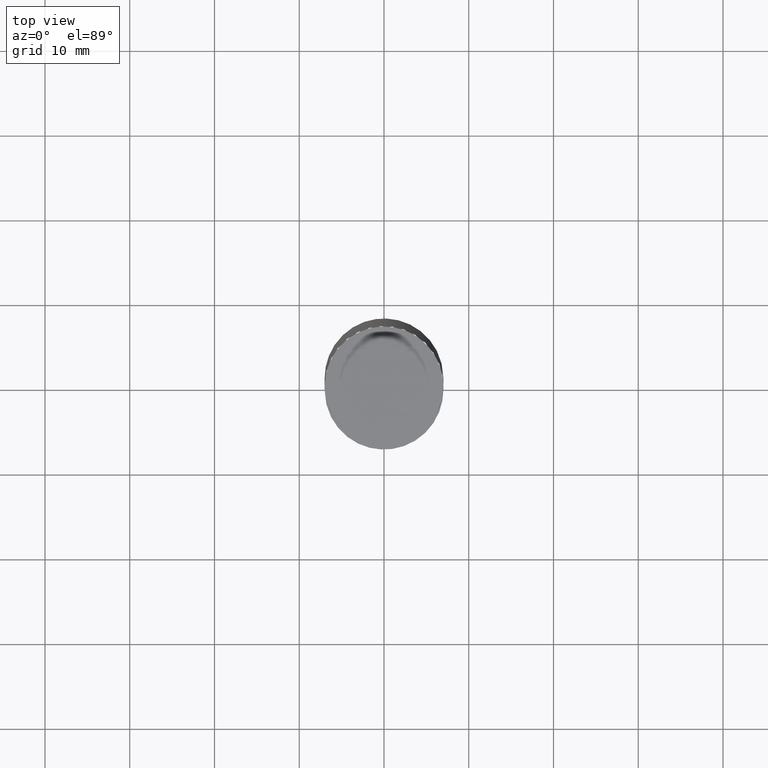
[diagram: clean part render]
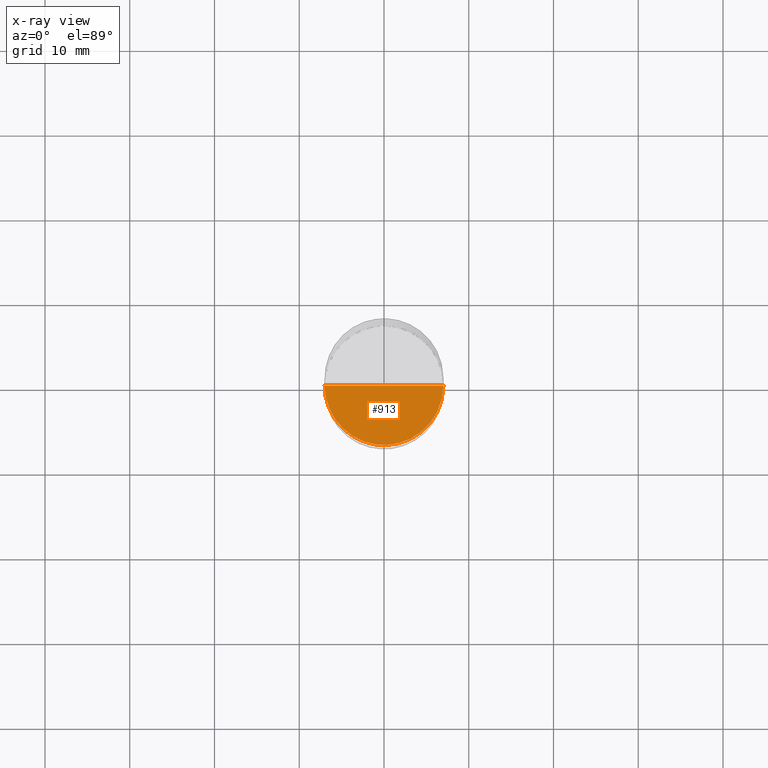
[diagram: x-ray — body ghosted, one internal face saturated and labeled with its STEP entity id]
A machine part, top view, then the same camera in x-ray: the body is ghosted and one INTERNAL B-rep face — a face not visible from any outside direction — is saturated and labeled: STEP entity #913.
In plain terms, the highlighted face is a freeform B-spline surface patch.
Its self-contained STEP definition (entity closure, byte-faithful):
#768=CARTESIAN_POINT('',(7.0,0.0,-3.0));
#772=CARTESIAN_POINT('',(-7.0,0.0,-3.0));
#773=CARTESIAN_POINT('',(0.0,0.0,-3.0));
#777=CARTESIAN_POINT('',(-7.0,-7.0,-3.0));
#778=CARTESIAN_POINT('',(0.0,-7.0,-3.0));
#779=CARTESIAN_POINT('',(7.0,-7.0,-3.0));
#898=(
BOUNDED_SURFACE()
B_SPLINE_SURFACE(1,2,(
(#772,#777,#778,#779,#768),
(#773,#773,#773,#773,#773)
), .UNSPECIFIED.,.F.,.F.,.F.)
B_SPLINE_SURFACE_WITH_KNOTS((2,2),(3,2,3),(
0.0,1.0),(
0.0,0.5,1.0), .UNSPECIFIED.)
GEOMETRIC_REPRESENTATION_ITEM()
RATIONAL_B_SPLINE_SURFACE(((1.0,0.707106781187,1.0,0.707106781187,1.0),
(1.0,0.707106781187,1.0,0.707106781187,1.0)
))
REPRESENTATION_ITEM('')
SURFACE()
);
#899=(
BOUNDED_CURVE()
B_SPLINE_CURVE(2,(#768,#779,#778,#777,#772),.UNSPECIFIED.,.F.,.F.)
B_SPLINE_CURVE_WITH_KNOTS((3,2,3),
(0.0,0.5,1.0),.UNSPECIFIED.)
CURVE()
GEOMETRIC_REPRESENTATION_ITEM()
RATIONAL_B_SPLINE_CURVE((1.0,0.707106781187,1.0,0.707106781187,1.0))
REPRESENTATION_ITEM('')
);
#900=(
BOUNDED_CURVE()
B_SPLINE_CURVE(1,(#772,#773),.UNSPECIFIED.,.F.,.F.)
B_SPLINE_CURVE_WITH_KNOTS((2,2),
(0.0,1.0),.UNSPECIFIED.)
CURVE()
GEOMETRIC_REPRESENTATION_ITEM()
RATIONAL_B_SPLINE_CURVE((1.0,1.0))
REPRESENTATION_ITEM('')
);
#901=(
BOUNDED_CURVE()
B_SPLINE_CURVE(1,(#773,#768),.UNSPECIFIED.,.F.,.F.)
B_SPLINE_CURVE_WITH_KNOTS((2,2),
(0.0,1.0),.UNSPECIFIED.)
CURVE()
GEOMETRIC_REPRESENTATION_ITEM()
RATIONAL_B_SPLINE_CURVE((1.0,1.0))
REPRESENTATION_ITEM('')
);
#902=VERTEX_POINT('',#768);
#903=VERTEX_POINT('',#772);
#904=VERTEX_POINT('',#773);
#905=EDGE_CURVE('',#902,#903,#899,.T.);
#906=EDGE_CURVE('',#903,#904,#900,.T.);
#907=EDGE_CURVE('',#904,#902,#901,.T.);
#908=ORIENTED_EDGE('',*,*,#905,.T.);
#909=ORIENTED_EDGE('',*,*,#906,.T.);
#910=ORIENTED_EDGE('',*,*,#907,.T.);
#911=EDGE_LOOP('',(#908,#909,#910));
#912=FACE_OUTER_BOUND('',#911,.T.);
#913=ADVANCED_FACE('',(#912),#898,.T.);